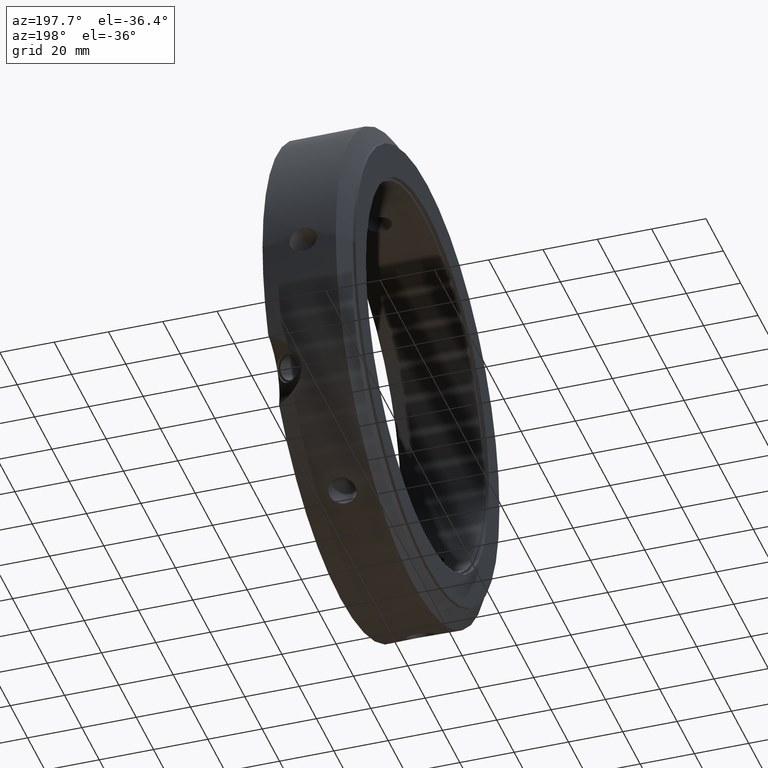
[diagram: clean part render]
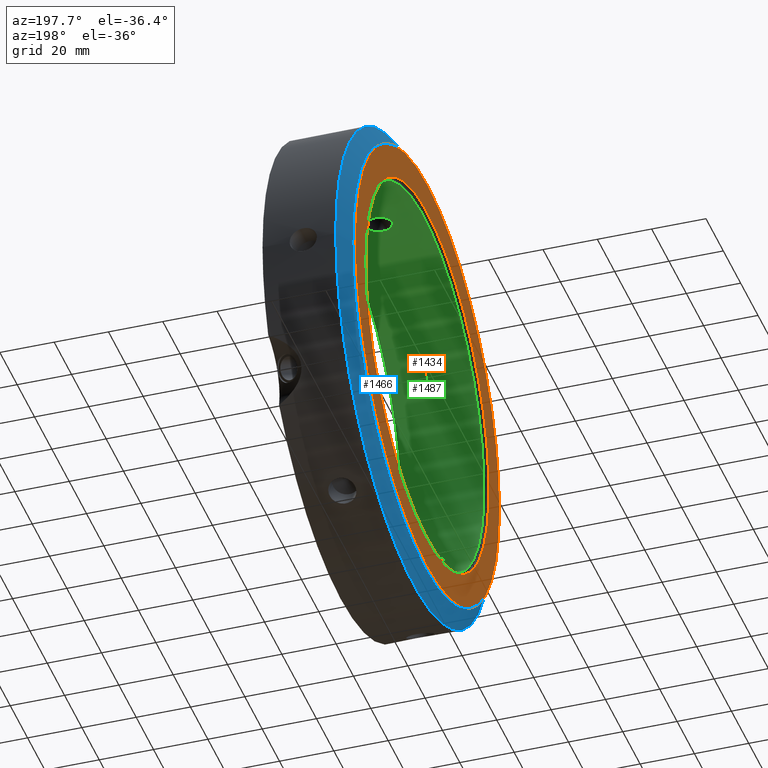
[diagram: same view with three faces highlighted in distinct colors, each labeled with its STEP entity id]
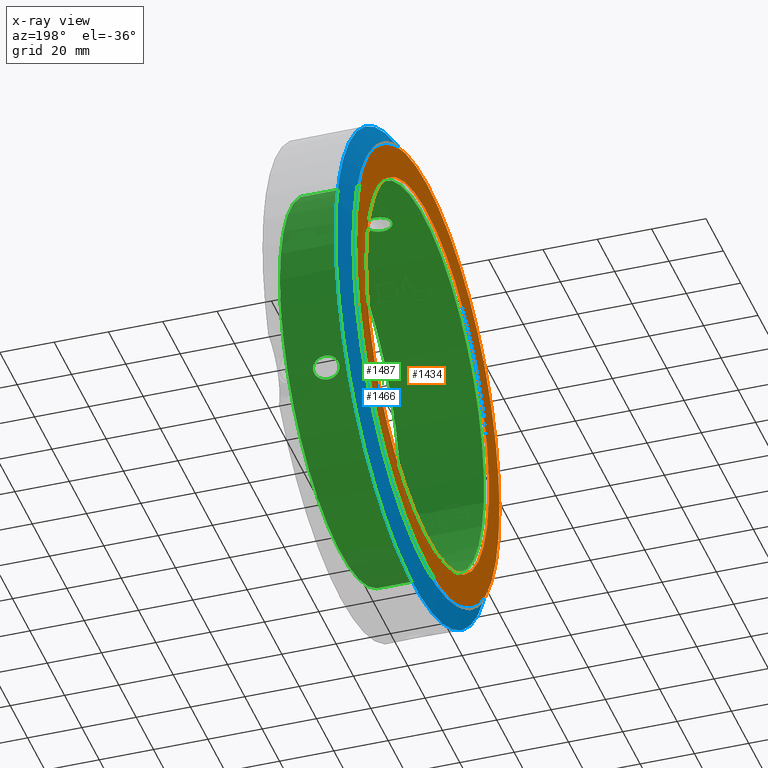
[diagram: x-ray of the same camera — body ghosted, the three highlighted faces saturated]
A machine part, auxiliary view with three faces highlighted in distinct colors.
The next image is the same camera in x-ray (body ghosted, the three faces saturated) — at least one of them is partly hidden behind the body in this view.
Their STEP definitions:

[orange] entity #1434 — the highlighted planar face has unit normal (-1, 0, 0).
#1400=CARTESIAN_POINT('',(-2.081668E-014,71.0,0.0));
#1401=VERTEX_POINT('',#1400);
#1402=CARTESIAN_POINT('',(-2.081668E-014,0.0,0.0));
#1403=DIRECTION('',(1.0,0.0,0.0));
#1404=DIRECTION('',(0.0,1.0,0.0));
#1405=AXIS2_PLACEMENT_3D('',#1402,#1403,#1404);
#1406=CIRCLE('',#1405,71.0);
#1407=EDGE_CURVE('',#1401,#1401,#1406,.T.);
#1415=CARTESIAN_POINT('',(-2.373102E-014,77.000000000000014,0.0));
#1416=DIRECTION('',(-1.0,0.0,0.0));
#1417=DIRECTION('',(0.0,0.0,1.0));
#1418=AXIS2_PLACEMENT_3D('',#1415,#1416,#1417);
#1419=PLANE('',#1418);
#1420=CARTESIAN_POINT('',(-2.664535E-014,83.0,0.0));
#1421=VERTEX_POINT('',#1420);
#1422=CARTESIAN_POINT('',(-2.664535E-014,0.0,0.0));
#1423=DIRECTION('',(1.0,0.0,0.0));
#1424=DIRECTION('',(0.0,1.0,0.0));
#1425=AXIS2_PLACEMENT_3D('',#1422,#1423,#1424);
#1426=CIRCLE('',#1425,83.0);
#1427=EDGE_CURVE('',#1421,#1421,#1426,.T.);
#1428=ORIENTED_EDGE('',*,*,#1427,.F.);
#1429=EDGE_LOOP('',(#1428));
#1430=FACE_OUTER_BOUND('',#1429,.T.);
#1431=ORIENTED_EDGE('',*,*,#1407,.T.);
#1432=EDGE_LOOP('',(#1431));
#1433=FACE_BOUND('',#1432,.T.);
#1434=ADVANCED_FACE('',(#1430,#1433),#1419,.T.);

[blue] entity #1466 — the highlighted conical surface has half-angle 60 deg.
#1087=CARTESIAN_POINT('',(5.041451884327342,90.0,0.0));
#1088=VERTEX_POINT('',#1087);
#1089=CARTESIAN_POINT('',(5.041451884327342,0.0,0.0));
#1090=DIRECTION('',(1.0,0.0,0.0));
#1091=DIRECTION('',(0.0,1.0,0.0));
#1092=AXIS2_PLACEMENT_3D('',#1089,#1090,#1091);
#1093=CIRCLE('',#1092,90.0);
#1094=EDGE_CURVE('',#1088,#1088,#1093,.T.);
#1440=CARTESIAN_POINT('',(0.999999999999973,83.0,0.0));
#1441=VERTEX_POINT('',#1440);
#1442=CARTESIAN_POINT('',(0.999999999999973,0.0,0.0));
#1443=DIRECTION('',(1.0,0.0,0.0));
#1444=DIRECTION('',(0.0,1.0,0.0));
#1445=AXIS2_PLACEMENT_3D('',#1442,#1443,#1444);
#1446=CIRCLE('',#1445,83.0);
#1447=EDGE_CURVE('',#1441,#1441,#1446,.T.);
#1455=CARTESIAN_POINT('',(3.020725942163657,0.0,0.0));
#1456=DIRECTION('',(1.0,0.0,0.0));
#1457=DIRECTION('',(0.0,1.0,0.0));
#1458=AXIS2_PLACEMENT_3D('',#1455,#1456,#1457);
#1459=CONICAL_SURFACE('',#1458,86.5,60.000000000000057);
#1460=ORIENTED_EDGE('',*,*,#1094,.F.);
#1461=EDGE_LOOP('',(#1460));
#1462=FACE_OUTER_BOUND('',#1461,.T.);
#1463=ORIENTED_EDGE('',*,*,#1447,.T.);
#1464=EDGE_LOOP('',(#1463));
#1465=FACE_BOUND('',#1464,.T.);
#1466=ADVANCED_FACE('',(#1462,#1465),#1459,.T.);

[green] entity #1487 — the highlighted cylindrical surface (bore or boss wall) has radius 70 mm, axis along (1, 0, 0).
#745=CARTESIAN_POINT('',(17.842122965125863,62.607184447688731,-31.310388939345376));
#746=VERTEX_POINT('',#745);
#747=CARTESIAN_POINT('',(17.842122965125863,62.607184447688731,-31.310388939345376));
#748=CARTESIAN_POINT('',(18.461736663080579,62.607184447688731,-31.310388939345376));
#749=CARTESIAN_POINT('',(19.127542333995031,62.558751170971945,-31.407865737273521));
#750=CARTESIAN_POINT('',(20.369057483909891,62.354036934301654,-31.812347547458614));
#751=CARTESIAN_POINT('',(20.944777735307841,62.197506459101646,-32.119193157334294));
#752=CARTESIAN_POINT('',(21.793294915087497,61.842026652232946,-32.797664242948642));
#753=CARTESIAN_POINT('',(22.147017135323605,61.632038876589093,-33.192473073576096));
#754=CARTESIAN_POINT('',(22.626074252593643,61.153072815361185,-34.066848561386124));
#755=CARTESIAN_POINT('',(22.750404698006143,60.883519819720661,-34.546650328617091));
#756=CARTESIAN_POINT('',(22.750404698006143,60.360036710100729,-35.453349671382966));
#757=CARTESIAN_POINT('',(22.626074252593646,60.079292688718304,-35.926690296889333));
#758=CARTESIAN_POINT('',(22.147017135323619,59.56154433444236,-36.778674817368298));
#759=CARTESIAN_POINT('',(21.793294915087511,59.324623745302475,-37.157933980873793));
#760=CARTESIAN_POINT('',(20.944777735307845,58.914790452861595,-37.805024066961657));
#761=CARTESIAN_POINT('',(20.369057483909895,58.727319597269542,-38.094006239889133));
#762=CARTESIAN_POINT('',(19.127542333995031,58.47938519261568,-38.473534874454501));
#763=CARTESIAN_POINT('',(18.461736663080579,58.419184447688735,-38.564217721443832));
#764=CARTESIAN_POINT('',(17.237001643713768,58.419184447688728,-38.564217721443832));
#765=CARTESIAN_POINT('',(16.585953900229562,58.476825430809363,-38.4774026274943));
#766=CARTESIAN_POINT('',(15.376458536481373,58.720539172627035,-38.104434187831501));
#767=CARTESIAN_POINT('',(14.818158605066301,58.906582673526259,-37.817782966564579));
#768=CARTESIAN_POINT('',(13.9938795203153,59.317744722758889,-37.168960230555037));
#769=CARTESIAN_POINT('',(13.652500490359607,59.557830664443031,-36.784740072922432));
#770=CARTESIAN_POINT('',(13.194715104705175,60.07957421575567,-35.926272528549482));
#771=CARTESIAN_POINT('',(13.078632988541528,60.360987085500355,-35.451703572904535));
#772=CARTESIAN_POINT('',(13.078632988541528,60.882569444321021,-34.548296427095522));
#773=CARTESIAN_POINT('',(13.194715104705166,61.152851780884639,-34.067301255122267));
#774=CARTESIAN_POINT('',(13.652500490359593,61.635434706979744,-33.186224313238348));
#775=CARTESIAN_POINT('',(13.993879520315289,61.848136153293552,-32.786193709832069));
#776=CARTESIAN_POINT('',(14.818158605066289,62.204452100614432,-32.105705562119759));
#777=CARTESIAN_POINT('',(15.376458536481367,62.359677589807838,-31.801261553498584));
#778=CARTESIAN_POINT('',(16.585953900229562,62.560820862456829,-31.403715042001718));
#779=CARTESIAN_POINT('',(17.237001643713768,62.607184447688731,-31.310388939345376));
#780=CARTESIAN_POINT('',(17.842122965125863,62.607184447688731,-31.310388939345376));
#781=B_SPLINE_CURVE_WITH_KNOTS('',3,(#747,#748,#749,#750,#751,#752,#753,#754,#755,#756,#757,#758,#759,#760,#761,#762,#763,#764,#765,#766,#767,#768,#769,#770,#771,#772,#773,#774,#775,#776,#777,#778,#779,#780),.UNSPECIFIED.,.T.,.U.,(4,2,2,2,2,2,2,2,2,2,2,2,2,2,2,2,4),(0.0,0.185884109386414,0.371768218772829,0.528813151658809,0.68585808454479,0.842903017430771,0.999947950316753,1.185832059703168,1.371716169089582,1.55325256551321,1.734788961936838,1.891263669583038,2.047738377229239,2.204213084875438,2.360687792521639,2.542224188945268,2.723760585368896),.UNSPECIFIED.);
#782=EDGE_CURVE('',#746,#746,#781,.T.);
#916=CARTESIAN_POINT('',(17.84212296512586,-58.419184447688764,-38.564217721443789));
#917=VERTEX_POINT('',#916);
#918=CARTESIAN_POINT('',(17.84212296512586,-58.419184447688764,-38.564217721443789));
#919=CARTESIAN_POINT('',(18.438045013084057,-58.419184447688764,-38.564217721443789));
#920=CARTESIAN_POINT('',(19.079539088363603,-58.474901765172689,-38.480257717877372));
#921=CARTESIAN_POINT('',(20.28227824286402,-58.705429433161086,-38.127639918389889));
#922=CARTESIAN_POINT('',(20.843506254204591,-58.88004821336623,-37.858798714810007));
#923=CARTESIAN_POINT('',(21.715130318294182,-59.27675407369,-37.234283925174985));
#924=CARTESIAN_POINT('',(22.096501805668062,-59.519829613944637,-36.846372096845222));
#925=CARTESIAN_POINT('',(22.61465941098594,-60.055554786189802,-35.966589974204211));
#926=CARTESIAN_POINT('',(22.750404698006143,-60.348091938859191,-35.474038622058089));
#927=CARTESIAN_POINT('',(22.750404698006143,-60.883519819720675,-34.546650328617041));
#928=CARTESIAN_POINT('',(22.626074252593643,-61.153072815361213,-34.066848561386095));
#929=CARTESIAN_POINT('',(22.147017135323615,-61.632038876589121,-33.19247307357606));
#930=CARTESIAN_POINT('',(21.793294915087507,-61.84202665223296,-32.797664242948599));
#931=CARTESIAN_POINT('',(20.944777735307852,-62.197506459101675,-32.119193157334244));
#932=CARTESIAN_POINT('',(20.369057483909906,-62.354036934301675,-31.812347547458568));
#933=CARTESIAN_POINT('',(19.127542333995038,-62.558751170971966,-31.407865737273475));
#934=CARTESIAN_POINT('',(18.461736663080583,-62.607184447688759,-31.310388939345334));
#935=CARTESIAN_POINT('',(17.237001643713771,-62.607184447688759,-31.310388939345334));
#936=CARTESIAN_POINT('',(16.585953900229566,-62.56082086245685,-31.403715042001672));
#937=CARTESIAN_POINT('',(15.376458536481374,-62.359677589807859,-31.801261553498534));
#938=CARTESIAN_POINT('',(14.818158605066296,-62.204452100614475,-32.105705562119702));
#939=CARTESIAN_POINT('',(13.993879520315293,-61.848136153293602,-32.786193709832013));
#940=CARTESIAN_POINT('',(13.652500490359611,-61.63543470697978,-33.186224313238299));
#941=CARTESIAN_POINT('',(13.194715104705177,-61.152851780884674,-34.067301255122224));
#942=CARTESIAN_POINT('',(13.078632988541521,-60.882569444321035,-34.548296427095472));
#943=CARTESIAN_POINT('',(13.078632988541521,-60.360987085500369,-35.451703572904492));
#944=CARTESIAN_POINT('',(13.194715104705175,-60.079574215755699,-35.926272528549447));
#945=CARTESIAN_POINT('',(13.652500490359607,-59.55783066444306,-36.784740072922389));
#946=CARTESIAN_POINT('',(13.993879520315302,-59.317744722758917,-37.168960230554994));
#947=CARTESIAN_POINT('',(14.818158605066305,-58.906582673526273,-37.817782966564543));
#948=CARTESIAN_POINT('',(15.376458536481385,-58.720539172627049,-38.104434187831473));
#949=CARTESIAN_POINT('',(16.585953900229573,-58.476825430809384,-38.477402627494264));
#950=CARTESIAN_POINT('',(17.237001643713771,-58.419184447688764,-38.564217721443789));
#951=CARTESIAN_POINT('',(17.842122965125863,-58.419184447688764,-38.564217721443789));
#952=B_SPLINE_CURVE_WITH_KNOTS('',3,(#918,#919,#920,#921,#922,#923,#924,#925,#926,#927,#928,#929,#930,#931,#932,#933,#934,#935,#936,#937,#938,#939,#940,#941,#942,#943,#944,#945,#946,#947,#948,#949,#950,#951),.UNSPECIFIED.,.T.,.U.,(4,2,2,2,2,2,2,2,2,2,2,2,2,2,2,2,4),(0.0,0.178776614387459,0.357553228774919,0.521765024405834,0.685976820036749,0.84302175292273,1.00006668580871,1.185950795195125,1.371834904581539,1.553371301005168,1.734907697428796,1.891382405074997,2.047857112721197,2.204331820367398,2.360806528013599,2.542342924437227,2.723879320860854),.UNSPECIFIED.);
#953=EDGE_CURVE('',#917,#917,#952,.T.);
#1182=CARTESIAN_POINT('',(17.842122965125871,-4.188,69.874606660789155));
#1183=VERTEX_POINT('',#1182);
#1184=CARTESIAN_POINT('',(17.842122965125871,-4.188,69.874606660789155));
#1185=CARTESIAN_POINT('',(18.461736663080586,-4.188,69.874606660789155));
#1186=CARTESIAN_POINT('',(19.127542333995034,-4.079365978356267,69.881400611727955));
#1187=CARTESIAN_POINT('',(20.369057483909899,-3.626717337032118,69.906353787347683));
#1188=CARTESIAN_POINT('',(20.944777735307845,-3.282716006240056,69.924217224295887));
#1189=CARTESIAN_POINT('',(21.793294915087511,-2.517402906930463,69.955598223822363));
#1190=CARTESIAN_POINT('',(22.147017135323608,-2.070494542146726,69.971147890944337));
#1191=CARTESIAN_POINT('',(22.626074252593639,-1.073780126642871,69.9935388582754));
#1192=CARTESIAN_POINT('',(22.75040469800615,-0.523483109619938,70.0));
#1193=CARTESIAN_POINT('',(22.75040469800615,0.523483109619936,70.0));
#1194=CARTESIAN_POINT('',(22.626074252593639,1.073780126642869,69.9935388582754));
#1195=CARTESIAN_POINT('',(22.147017135323608,2.070494542146724,69.971147890944337));
#1196=CARTESIAN_POINT('',(21.793294915087511,2.517402906930462,69.955598223822363));
#1197=CARTESIAN_POINT('',(20.944777735307845,3.282716006240055,69.924217224295887));
#1198=CARTESIAN_POINT('',(20.369057483909891,3.626717337032122,69.906353787347683));
#1199=CARTESIAN_POINT('',(19.127542333995027,4.079365978356271,69.881400611727955));
#1200=CARTESIAN_POINT('',(18.461736663080583,4.188,69.874606660789155));
#1201=CARTESIAN_POINT('',(17.237001643713775,4.188,69.874606660789155));
#1202=CARTESIAN_POINT('',(16.585953900229573,4.083995431647459,69.881117669495978));
#1203=CARTESIAN_POINT('',(15.376458536481382,3.639138417180798,69.905695741330035));
#1204=CARTESIAN_POINT('',(14.818158605066301,3.297869427088198,69.923488528684288));
#1205=CARTESIAN_POINT('',(13.9938795203153,2.530391430534685,69.955153940387035));
#1206=CARTESIAN_POINT('',(13.652500490359611,2.077604042536718,69.970964386160716));
#1207=CARTESIAN_POINT('',(13.194715104705178,1.073277565128985,69.993573783671692));
#1208=CARTESIAN_POINT('',(13.07863298854153,0.52158235882067,70.0));
#1209=CARTESIAN_POINT('',(13.078632988541528,-0.521582358820666,70.0));
#1210=CARTESIAN_POINT('',(13.194715104705178,-1.07327756512898,69.993573783671692));
#1211=CARTESIAN_POINT('',(13.652500490359611,-2.077604042536714,69.970964386160716));
#1212=CARTESIAN_POINT('',(13.993879520315298,-2.530391430534682,69.955153940387035));
#1213=CARTESIAN_POINT('',(14.818158605066301,-3.297869427088197,69.923488528684288));
#1214=CARTESIAN_POINT('',(15.376458536481382,-3.639138417180798,69.905695741330035));
#1215=CARTESIAN_POINT('',(16.585953900229573,-4.083995431647459,69.881117669495978));
#1216=CARTESIAN_POINT('',(17.237001643713771,-4.188,69.874606660789155));
#1217=CARTESIAN_POINT('',(17.842122965125867,-4.188,69.874606660789155));
#1218=B_SPLINE_CURVE_WITH_KNOTS('',3,(#1184,#1185,#1186,#1187,#1188,#1189,#1190,#1191,#1192,#1193,#1194,#1195,#1196,#1197,#1198,#1199,#1200,#1201,#1202,#1203,#1204,#1205,#1206,#1207,#1208,#1209,#1210,#1211,#1212,#1213,#1214,#1215,#1216,#1217),.UNSPECIFIED.,.T.,.U.,(4,2,2,2,2,2,2,2,2,2,2,2,2,2,2,2,4),(0.0,0.185884109386414,0.371768218772829,0.52881315165881,0.685858084544791,0.842903017430772,0.999947950316754,1.185832059703168,1.371716169089583,1.553252565513211,1.734788961936838,1.891263669583039,2.047738377229239,2.204213084875439,2.36068779252164,2.542224188945268,2.723760585368896),.UNSPECIFIED.);
#1219=EDGE_CURVE('',#1183,#1183,#1218,.T.);
#1355=CARTESIAN_POINT('',(31.999999999999986,70.0,0.0));
#1356=VERTEX_POINT('',#1355);
#1357=CARTESIAN_POINT('',(31.999999999999986,0.0,0.0));
#1358=DIRECTION('',(1.0,0.0,0.0));
#1359=DIRECTION('',(0.0,1.0,0.0));
#1360=AXIS2_PLACEMENT_3D('',#1357,#1358,#1359);
#1361=CIRCLE('',#1360,70.0);
#1362=EDGE_CURVE('',#1356,#1356,#1361,.T.);
#1383=CARTESIAN_POINT('',(1.499999999999979,70.0,0.0));
#1384=VERTEX_POINT('',#1383);
#1385=CARTESIAN_POINT('',(1.499999999999979,0.0,0.0));
#1386=DIRECTION('',(1.0,0.0,0.0));
#1387=DIRECTION('',(0.0,1.0,0.0));
#1388=AXIS2_PLACEMENT_3D('',#1385,#1386,#1387);
#1389=CIRCLE('',#1388,70.0);
#1390=EDGE_CURVE('',#1384,#1384,#1389,.T.);
#1467=CARTESIAN_POINT('',(16.749999999999986,0.0,0.0));
#1468=DIRECTION('',(1.0,0.0,0.0));
#1469=DIRECTION('',(0.0,1.0,0.0));
#1470=AXIS2_PLACEMENT_3D('',#1467,#1468,#1469);
#1471=CYLINDRICAL_SURFACE('',#1470,70.0);
#1472=ORIENTED_EDGE('',*,*,#1390,.F.);
#1473=EDGE_LOOP('',(#1472));
#1474=FACE_OUTER_BOUND('',#1473,.T.);
#1475=ORIENTED_EDGE('',*,*,#782,.T.);
#1476=EDGE_LOOP('',(#1475));
#1477=FACE_BOUND('',#1476,.T.);
#1478=ORIENTED_EDGE('',*,*,#953,.T.);
#1479=EDGE_LOOP('',(#1478));
#1480=FACE_BOUND('',#1479,.T.);
#1481=ORIENTED_EDGE('',*,*,#1219,.T.);
#1482=EDGE_LOOP('',(#1481));
#1483=FACE_BOUND('',#1482,.T.);
#1484=ORIENTED_EDGE('',*,*,#1362,.T.);
#1485=EDGE_LOOP('',(#1484));
#1486=FACE_BOUND('',#1485,.T.);
#1487=ADVANCED_FACE('',(#1474,#1477,#1480,#1483,#1486),#1471,.F.);